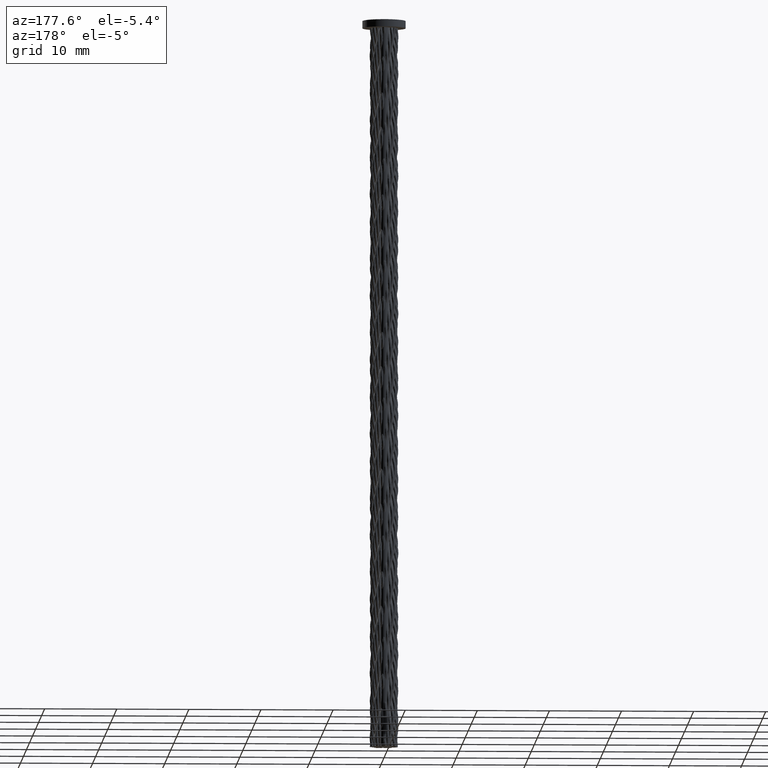
[diagram: clean part render]
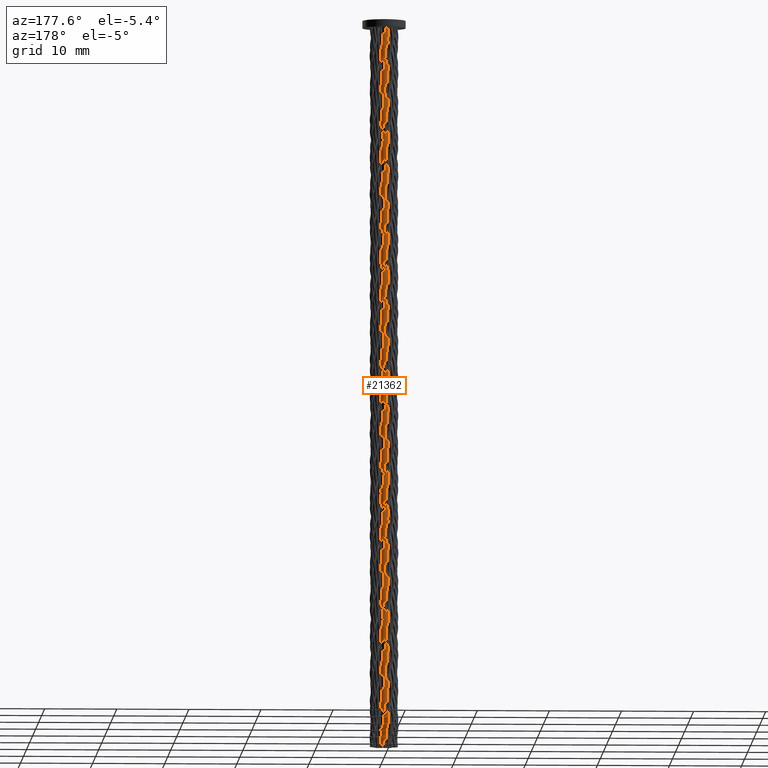
[diagram: same view with one face highlighted and labeled with its STEP entity id]
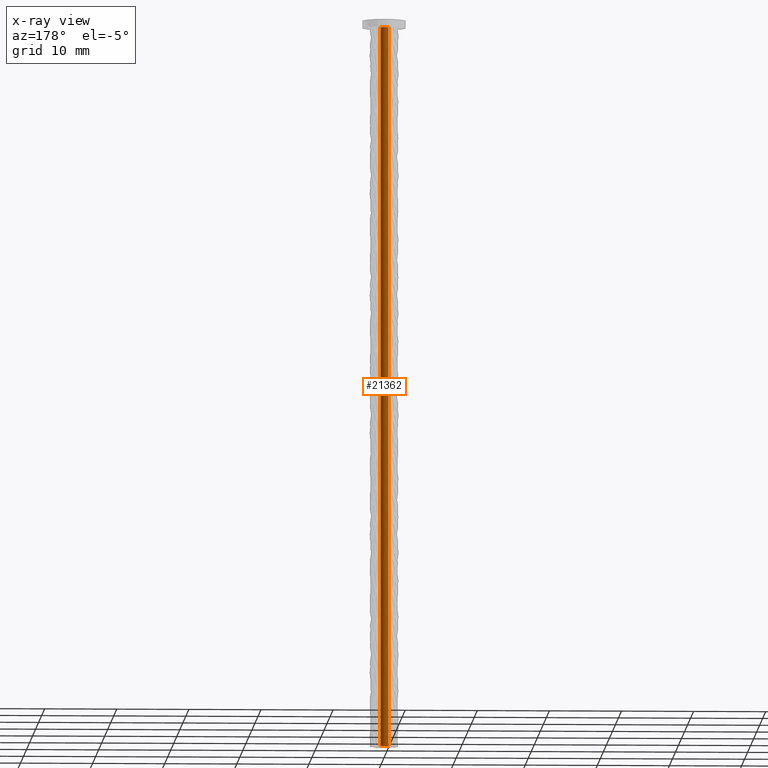
[diagram: x-ray of the same camera — body ghosted, the highlighted face saturated]
A machine part, auxiliary view. The second image highlights one B-rep face of the part: STEP entity #21362.
The next image is the same camera in x-ray: the body ghosted, the highlighted face saturated — about 0% of this face is hidden behind the body in this view.
In plain terms, the highlighted cylindrical surface (bore or boss wall) has radius 0.55 mm, axis along (0, 0, -1).
Its self-contained STEP definition (entity closure, byte-faithful):
#852 = DIRECTION ( 'NONE',  ( -1.000000000000000000, 0.000000000000000000, 0.000000000000000000 ) ) ;
#1260 = CARTESIAN_POINT ( 'NONE',  ( -0.5500000000000000444, 1.333333333333333481, 0.000000000000000000 ) ) ;
#2475 = EDGE_CURVE ( 'NONE', #21159, #21159, #14203, .T. ) ;
#3206 = ORIENTED_EDGE ( 'NONE', *, *, #20563, .F. ) ;
#4426 = DIRECTION ( 'NONE',  ( -1.000000000000000000, 0.000000000000000000, 0.000000000000000000 ) ) ;
#6917 = FACE_OUTER_BOUND ( 'NONE', #13950, .T. ) ;
#12537 = VERTEX_POINT ( 'NONE', #30688 ) ;
#13190 = CYLINDRICAL_SURFACE ( 'NONE', #21511, 0.5500000000000000444 ) ;
#13950 = EDGE_LOOP ( 'NONE', ( #26632 ) ) ;
#14203 = CIRCLE ( 'NONE', #24752, 0.5500000000000000444 ) ;
#15797 = DIRECTION ( 'NONE',  ( 0.000000000000000000, 0.000000000000000000, -1.000000000000000000 ) ) ;
#16865 = AXIS2_PLACEMENT_3D ( 'NONE', #23417, #33648, #852 ) ;
#18350 = FACE_OUTER_BOUND ( 'NONE', #28606, .T. ) ;
#20563 = EDGE_CURVE ( 'NONE', #12537, #12537, #27487, .T. ) ;
#21159 = VERTEX_POINT ( 'NONE', #1260 ) ;
#21362 = ADVANCED_FACE ( 'NONE', ( #18350, #6917 ), #13190, .T. ) ;
#21511 = AXIS2_PLACEMENT_3D ( 'NONE', #26353, #15797, #4426 ) ;
#23417 = CARTESIAN_POINT ( 'NONE',  ( 0.000000000000000000, 1.333333333333333481, -100.0000000000000000 ) ) ;
#24267 = CARTESIAN_POINT ( 'NONE',  ( 0.000000000000000000, 1.333333333333333481, 0.000000000000000000 ) ) ;
#24752 = AXIS2_PLACEMENT_3D ( 'NONE', #24267, #31605, #42966 ) ;
#26353 = CARTESIAN_POINT ( 'NONE',  ( 0.000000000000000000, 1.333333333333333481, 0.000000000000000000 ) ) ;
#26632 = ORIENTED_EDGE ( 'NONE', *, *, #2475, .T. ) ;
#27487 = CIRCLE ( 'NONE', #16865, 0.5500000000000000444 ) ;
#28606 = EDGE_LOOP ( 'NONE', ( #3206 ) ) ;
#30688 = CARTESIAN_POINT ( 'NONE',  ( -0.5500000000000000444, 1.333333333333333481, -100.0000000000000000 ) ) ;
#31605 = DIRECTION ( 'NONE',  ( 0.000000000000000000, 0.000000000000000000, -1.000000000000000000 ) ) ;
#33648 = DIRECTION ( 'NONE',  ( 0.000000000000000000, 0.000000000000000000, -1.000000000000000000 ) ) ;
#42966 = DIRECTION ( 'NONE',  ( -1.000000000000000000, 0.000000000000000000, 0.000000000000000000 ) ) ;